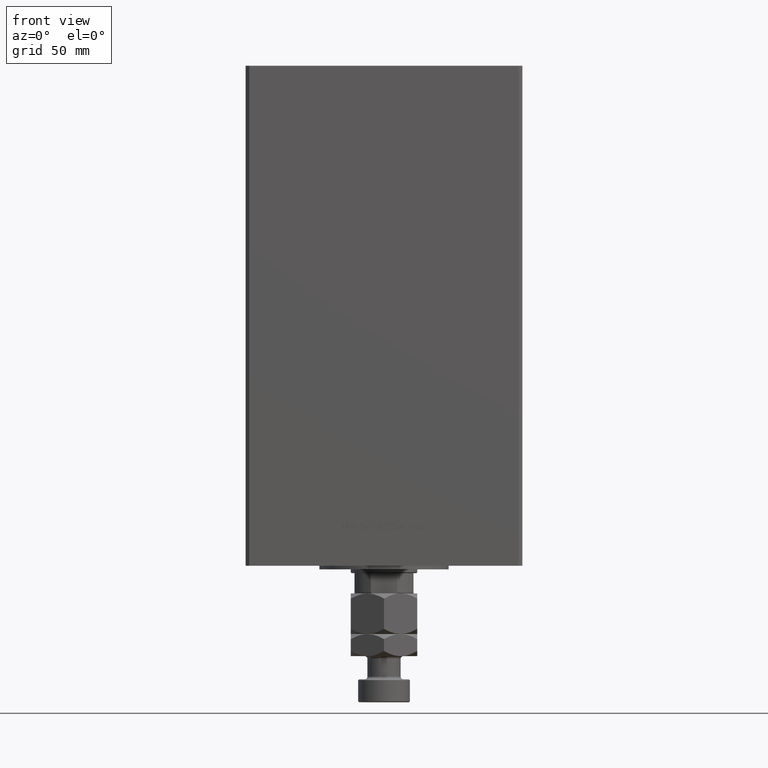
[diagram: clean part render]
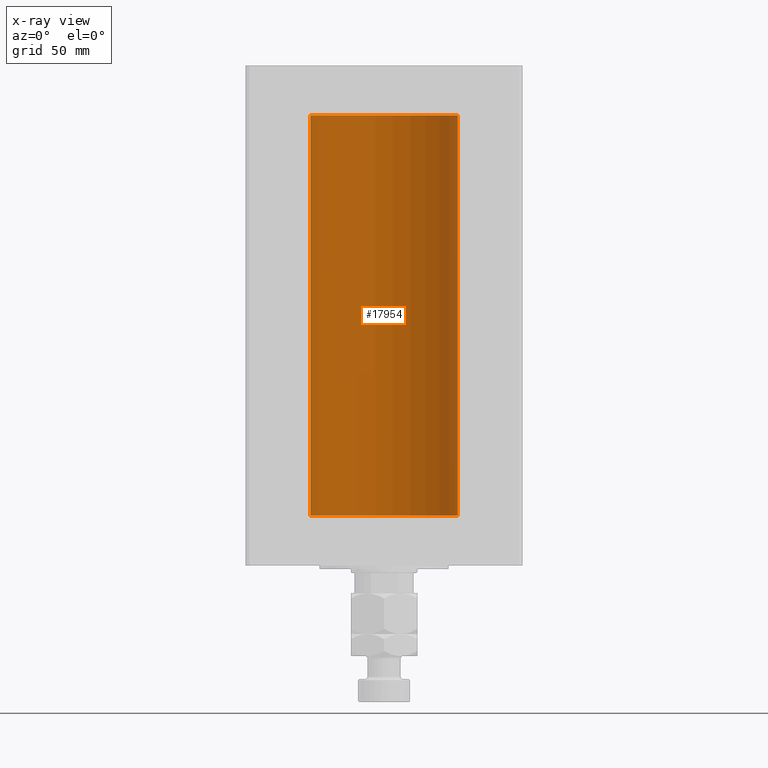
[diagram: x-ray — body ghosted, one internal face saturated and labeled with its STEP entity id]
A machine part, front view, then the same camera in x-ray: the body is ghosted and one INTERNAL B-rep face — a face not visible from any outside direction — is saturated and labeled: STEP entity #17954.
In plain terms, the highlighted cylindrical surface (partial cylindrical patch) has radius 40 mm, axis along (-0, -0, -1).
Its self-contained STEP definition (entity closure, byte-faithful):
#883 = DIRECTION ( 'NONE',  ( -1.000000000000000000, 0.000000000000000000, 0.000000000000000000 ) ) ;
#4743 = CYLINDRICAL_SURFACE ( 'NONE', #47586, 40.00000000000000000 ) ;
#5197 = CIRCLE ( 'NONE', #46900, 40.00000000000000000 ) ;
#6516 = CARTESIAN_POINT ( 'NONE',  ( -40.00000000000000000, 0.000000000000000000, 0.000000000000000000 ) ) ;
#6954 = ORIENTED_EDGE ( 'NONE', *, *, #26291, .F. ) ;
#7575 = DIRECTION ( 'NONE',  ( 1.000000000000000000, 0.000000000000000000, 0.000000000000000000 ) ) ;
#8528 = DIRECTION ( 'NONE',  ( -0.000000000000000000, 0.000000000000000000, 1.000000000000000000 ) ) ;
#10932 = CARTESIAN_POINT ( 'NONE',  ( 0.000000000000000000, 0.000000000000000000, 217.0000000000000000 ) ) ;
#11914 = FACE_OUTER_BOUND ( 'NONE', #19400, .T. ) ;
#12595 = VECTOR ( 'NONE', #14294, 1000.000000000000000 ) ;
#14294 = DIRECTION ( 'NONE',  ( -0.000000000000000000, -0.000000000000000000, -1.000000000000000000 ) ) ;
#15998 = CARTESIAN_POINT ( 'NONE',  ( 40.00000000000000000, 4.898587196589413026E-15, 0.000000000000000000 ) ) ;
#16708 = CARTESIAN_POINT ( 'NONE',  ( 0.000000000000000000, 0.000000000000000000, 0.000000000000000000 ) ) ;
#17954 = ADVANCED_FACE ( 'NONE', ( #11914 ), #4743, .F. ) ;
#18392 = CARTESIAN_POINT ( 'NONE',  ( 40.00000000000000000, 4.898587196589413026E-15, 217.0000000000000000 ) ) ;
#18640 = VERTEX_POINT ( 'NONE', #25783 ) ;
#19400 = EDGE_LOOP ( 'NONE', ( #6954, #27084, #35706, #49615 ) ) ;
#20352 = CARTESIAN_POINT ( 'NONE',  ( 0.000000000000000000, 0.000000000000000000, 217.0000000000000000 ) ) ;
#22495 = LINE ( 'NONE', #26583, #12595 ) ;
#24148 = DIRECTION ( 'NONE',  ( 1.000000000000000000, 0.000000000000000000, 0.000000000000000000 ) ) ;
#25783 = CARTESIAN_POINT ( 'NONE',  ( -40.00000000000000000, 0.000000000000000000, 217.0000000000000000 ) ) ;
#26291 = EDGE_CURVE ( 'NONE', #37789, #29866, #22495, .T. ) ;
#26583 = CARTESIAN_POINT ( 'NONE',  ( 40.00000000000000000, 4.898587196589413026E-15, 217.0000000000000000 ) ) ;
#27084 = ORIENTED_EDGE ( 'NONE', *, *, #49900, .T. ) ;
#29866 = VERTEX_POINT ( 'NONE', #15998 ) ;
#31121 = DIRECTION ( 'NONE',  ( -0.000000000000000000, 0.000000000000000000, 1.000000000000000000 ) ) ;
#31879 = EDGE_CURVE ( 'NONE', #18640, #40568, #41838, .T. ) ;
#35706 = ORIENTED_EDGE ( 'NONE', *, *, #31879, .T. ) ;
#35968 = DIRECTION ( 'NONE',  ( -0.000000000000000000, -0.000000000000000000, -1.000000000000000000 ) ) ;
#37789 = VERTEX_POINT ( 'NONE', #18392 ) ;
#38251 = CARTESIAN_POINT ( 'NONE',  ( -40.00000000000000000, 0.000000000000000000, 217.0000000000000000 ) ) ;
#38416 = AXIS2_PLACEMENT_3D ( 'NONE', #16708, #8528, #24148 ) ;
#40568 = VERTEX_POINT ( 'NONE', #6516 ) ;
#40958 = EDGE_CURVE ( 'NONE', #29866, #40568, #45782, .T. ) ;
#41838 = LINE ( 'NONE', #38251, #44694 ) ;
#44694 = VECTOR ( 'NONE', #45430, 1000.000000000000000 ) ;
#45430 = DIRECTION ( 'NONE',  ( -0.000000000000000000, -0.000000000000000000, -1.000000000000000000 ) ) ;
#45782 = CIRCLE ( 'NONE', #38416, 40.00000000000000000 ) ;
#46900 = AXIS2_PLACEMENT_3D ( 'NONE', #10932, #31121, #7575 ) ;
#47586 = AXIS2_PLACEMENT_3D ( 'NONE', #20352, #35968, #883 ) ;
#49615 = ORIENTED_EDGE ( 'NONE', *, *, #40958, .F. ) ;
#49900 = EDGE_CURVE ( 'NONE', #37789, #18640, #5197, .T. ) ;